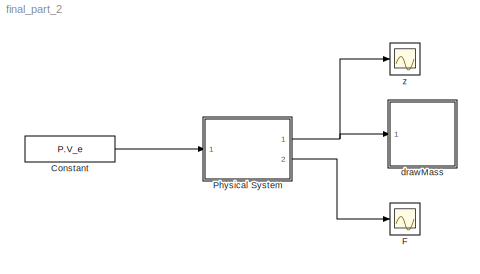
MODEL final_part_2
KIND model
BLOCK [Constant] Constant
  SID = 39
  Value = P.V_e
BLOCK [Scope] F
  DataFormat = StructureWithTime
  Floating = off
  NumInputPorts = 1
  Ports = [1]
  SID = 52
  SampleTime = 0
  SaveName = ScopeData1
  ShowLegends = off
  TimeRange = 60
  YMax = -2
  YMin = -4.5
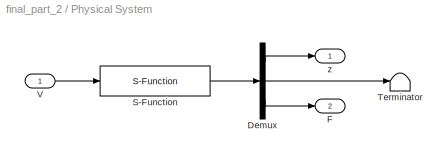
BLOCK [SubSystem] Physical System
  Ports = [1, 2]
  RequestExecContextInheritance = off
  SID = 17
BLOCK [Demux] Physical System/Demux
  DisplayOption = bar
  Outputs = [1;2;1]
  Ports = [1, 3]
  SID = 19
BLOCK [Outport] Physical System/F
  IconDisplay = Port number
  Port = 2
  SID = 50
BLOCK [S-Function] Physical System/S-Function
  EnableBusSupport = off
  FunctionName = mass_dynamics
  Parameters = P
  Ports = [1, 1]
  SID = 41
BLOCK [Terminator] Physical System/Terminator
  SID = 51
BLOCK [Inport] Physical System/V
  IconDisplay = Port number
  SID = 18
BLOCK [Outport] Physical System/z
  IconDisplay = Port number
  SID = 24
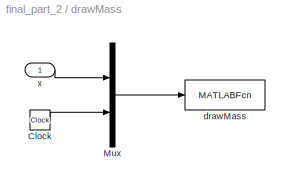
BLOCK [SubSystem] drawMass
  Ports = [1]
  RequestExecContextInheritance = off
  SID = 43
BLOCK [Clock] drawMass/Clock
  SID = 45
BLOCK [Mux] drawMass/Mux
  DisplayOption = bar
  Inputs = 2
  Ports = [2, 1]
  SID = 46
BLOCK [MATLABFcn] drawMass/drawMass
  MATLABFcn = drawMass(u,w,L,theta)
  OutputDimensions = 0
  Ports = [1]
  SID = 47
  SampleTime = 0.1
BLOCK [Inport] drawMass/x
  IconDisplay = Port number
  SID = 44
BLOCK [Scope] z
  DataFormat = StructureWithTime
  Floating = off
  NumInputPorts = 1
  Ports = [1]
  SID = 30
  SampleTime = 0
  ShowLegends = off
  TimeRange = 60
  YMax = 1
  YMin = -1
LINE Constant:1 -> Physical System:1
LINE Physical System/Demux:1 -> Physical System/z:1
LINE Physical System/Demux:2 -> Physical System/Terminator:1
LINE Physical System/Demux:3 -> Physical System/F:1
LINE Physical System/S-Function:1 -> Physical System/Demux:1
LINE Physical System/V:1 -> Physical System/S-Function:1
NET Physical System:1 -> drawMass:1, z:1
LINE Physical System:2 -> F:1
LINE drawMass/Clock:1 -> drawMass/Mux:2
LINE drawMass/Mux:1 -> drawMass/drawMass:1
LINE drawMass/x:1 -> drawMass/Mux:1
note: NET lines group one-source signal fan-out (src -> all destinations, sorted); 1:1 wires keep LINE
